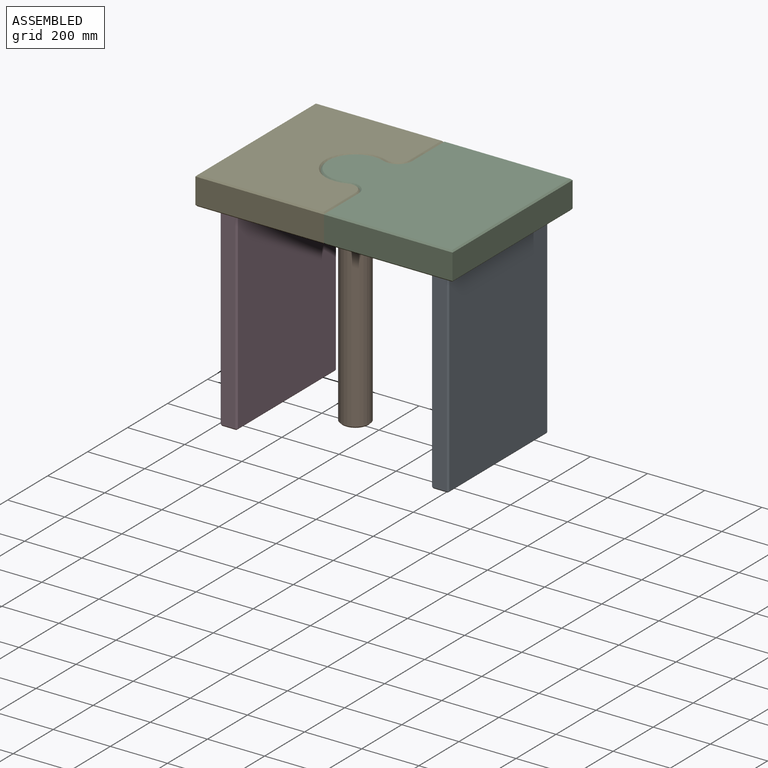
[diagram: assembled view]
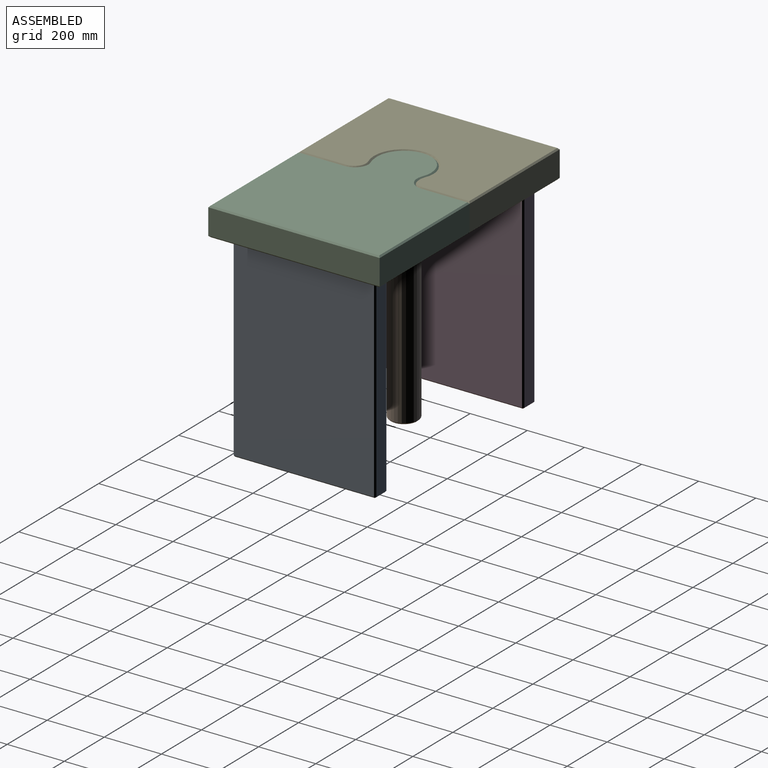
[diagram: assembled view, second angle]
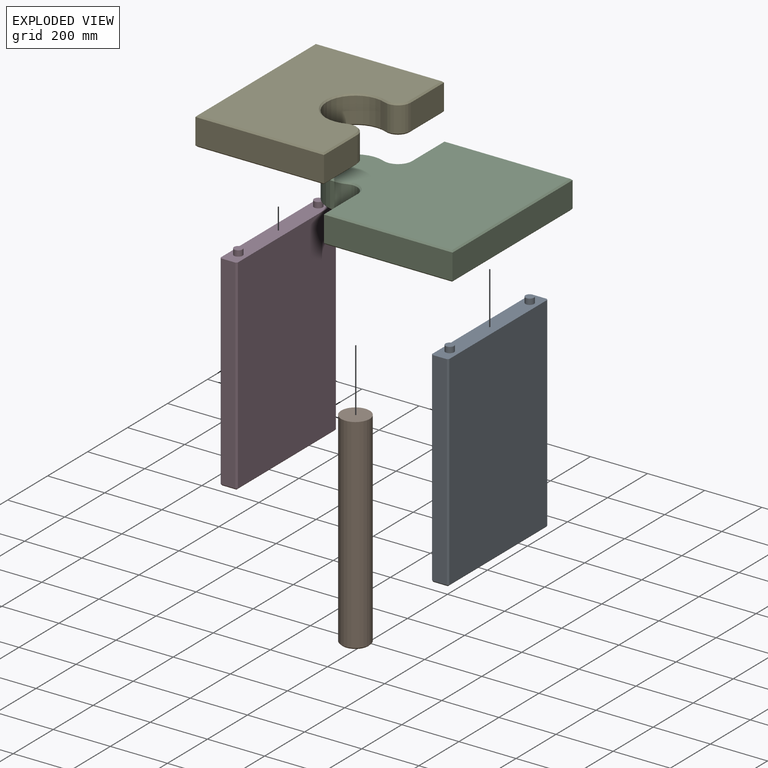
[diagram: exploded view]
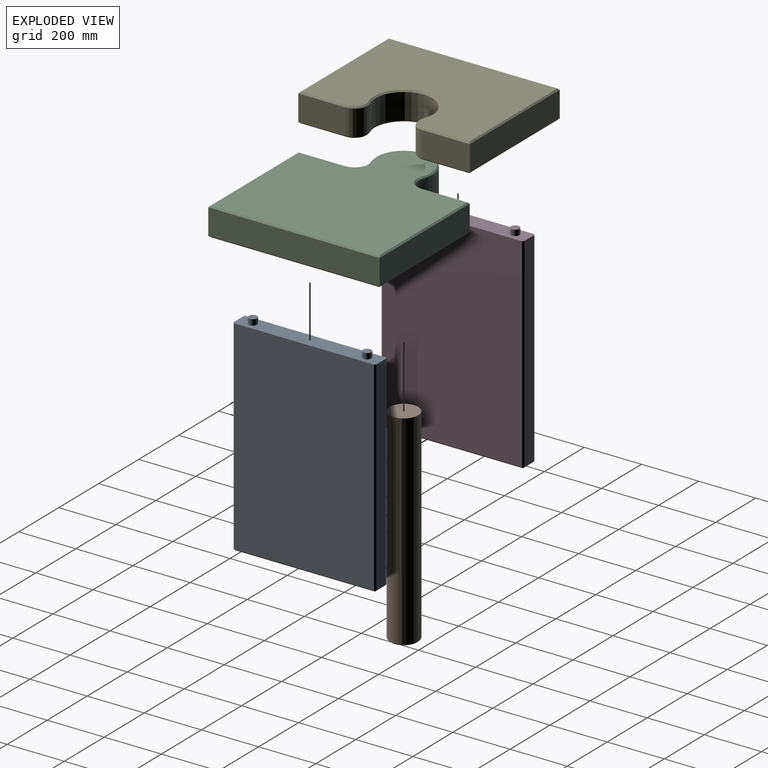
[diagram: exploded view, second angle]
ASSEMBLY  parts=5 mates=4
PART A: 22 faces, bbox 60x500x740 mm
  f0: plane 715x50mm, normal (0,1,0), area 35750mm2, adj f5,f10,f11,f12
  f1: plane 715x490mm, normal (-1,0,0), area 350350mm2, adj f5,f10,f15,f16
  f2: plane 715x50mm, normal (0,-1,0), area 35750mm2, adj f5,f16,f17,f21
  f3: plane 715x490mm, normal (1,0,0), area 350350mm2, adj f5,f11,f17,f18
  f4: plane 490x50mm, normal (0,0,-1), area 24500mm2, adj f12,f15,f18,f21
  f5: plane 500x60mm, normal (0,0,1), area 28536.3mm2, adj f0,f1,f2,f3,f6,f8,f10,f11
  f6: cylinder r=15mm len=30mm, axis (0,0,-1), area 1885mm2, adj f5,f7
  f7: plane 30x30mm, normal (0,0,1), area 706.9mm2, adj f6
  f8: cylinder r=15mm len=30mm, axis (0,0,-1), area 1885mm2, adj f5,f9
  f9: plane 30x30mm, normal (0,0,1), area 706.9mm2, adj f8
  f10: plane 715x5mm, normal (-0.71,0.71,0), area 5055.8mm2, adj f0,f1,f5,f13
  f11: plane 715x5mm, normal (0.71,0.71,0), area 5055.8mm2, adj f0,f3,f5,f14
  f12: plane 50x5mm, normal (0,0.71,-0.71), area 353.6mm2, adj f0,f4,f13,f14
  f13: plane 5x5mm, normal (-0.58,0.58,-0.58), area 21.7mm2, adj f10,f12,f15
  f14: plane 5x5mm, normal (0.58,0.58,-0.58), area 21.7mm2, adj f11,f12,f18
  f15: plane 490x5mm, normal (-0.71,0,-0.71), area 3464.8mm2, adj f1,f4,f13,f19
  f16: plane 715x5mm, normal (-0.71,-0.71,0), area 5055.8mm2, adj f1,f2,f5,f19
  f17: plane 715x5mm, normal (0.71,-0.71,0), area 5055.8mm2, adj f2,f3,f5,f20
  f18: plane 490x5mm, normal (0.71,0,-0.71), area 3464.8mm2, adj f3,f4,f14,f20
  f19: plane 5x5mm, normal (-0.58,-0.58,-0.58), area 21.7mm2, adj f15,f16,f21
  f20: plane 5x5mm, normal (0.58,-0.58,-0.58), area 21.7mm2, adj f17,f18,f21
  f21: plane 50x5mm, normal (0,-0.71,-0.71), area 353.6mm2, adj f2,f4,f19,f20
PART B: 4 faces, bbox 100x100x720 mm
  f0: cylinder r=50mm len=715mm, axis (0,0,1), area 224623.9mm2, adj f2,f3
  f1: plane 90x90mm, normal (0,0,-1), area 6361.7mm2, adj f3
  f2: plane 100x100mm, normal (0,0,1), area 7854mm2, adj f0
  f3: cone r=50mm half-angle=45deg, axis (0,0,1), area 2110.4mm2, adj f0,f1
PART C: 37 faces, bbox 650x600x100 mm
  f0: cylinder r=100mm len=200mm, axis (0,0,-1), area 35277.2mm2, adj f1,f7,f25,f33
  f1: cylinder r=45mm len=90mm, axis (0,0,-1), area 7937.4mm2, adj f0,f2,f23,f31
  f2: plane 165.84x90mm, normal (-1,0,0), area 14925.2mm2, adj f1,f3,f21,f29
  f3: plane 450x90mm, normal (0,-1,0), area 40500mm2, adj f2,f4,f22,f30
  f4: plane 600x90mm, normal (1,0,0), area 54000mm2, adj f3,f5,f24,f32
  f5: plane 450x90mm, normal (0,1,0), area 40500mm2, adj f4,f6,f26,f34
  f6: plane 165.84x90mm, normal (-1,0,0), area 14925.2mm2, adj f5,f7,f28,f36
  f7: cylinder r=45mm len=90mm, axis (0,0,-1), area 7937.4mm2, adj f0,f6,f27,f35
  f8: plane 640x590mm, normal (0,0,1), area 293183.4mm2, adj f29,f30,f31,f32,f33,f34,f35,f36
  f9: plane 640x590mm, normal (0,0,-1), area 255329.5mm2, adj f10,f11,f12,f13,f15,f21,f22,f23
  f10: plane 500x20mm, normal (1,0,0), area 10000mm2, adj f9,f11,f13,f14
  f11: plane 60x20mm, normal (0,-1,0), area 1200mm2, adj f9,f10,f12,f14
  f12: plane 500x20mm, normal (-1,0,0), area 10000mm2, adj f9,f11,f13,f14
  f13: plane 60x20mm, normal (0,1,0), area 1200mm2, adj f9,f10,f12,f14
  f14: plane 500x60mm, normal (0,0,-1), area 28586.3mm2, adj f10,f11,f12,f13,f17,f19
  f15: cylinder r=50mm len=100mm, axis (0,0,-1), area 6283.2mm2, adj f9,f16
  f16: plane 100x100mm, normal (0,0,-1), area 7854mm2, adj f15
  f17: cylinder r=15mm len=30mm, axis (0,0,-1), area 1885mm2, adj f14,f18
  f18: plane 30x30mm, normal (0,0,-1), area 706.9mm2, adj f17
  f19: cylinder r=15mm len=30mm, axis (0,0,-1), area 1885mm2, adj f14,f20
  f20: plane 30x30mm, normal (0,0,-1), area 706.9mm2, adj f19
  f21: plane 165.84x5mm, normal (-0.71,0,-0.71), area 1155mm2, adj f2,f9,f22,f23
  f22: plane 450x5mm, normal (0,-0.71,-0.71), area 3146.6mm2, adj f3,f9,f21,f24
  f23: cone r=45mm half-angle=45deg, axis (0,0,-1), area 658.3mm2, adj f1,f9,f21,f25
  f24: plane 600x5mm, normal (0.71,0,-0.71), area 4207.3mm2, adj f4,f9,f22,f26
  f25: cone r=100mm half-angle=45deg, axis (0,0,1), area 2702.4mm2, adj f0,f9,f23,f27
  f26: plane 450x5mm, normal (0,0.71,-0.71), area 3146.6mm2, adj f5,f9,f24,f28
  f27: cone r=50mm half-angle=45deg, axis (0,0,-1), area 658.3mm2, adj f7,f9,f25,f28
  f28: plane 165.84x5mm, normal (-0.71,0,-0.71), area 1155mm2, adj f6,f9,f26,f27
  f29: plane 165.84x5mm, normal (-0.71,0,0.71), area 1155mm2, adj f2,f8,f30,f31
  f30: plane 450x5mm, normal (0,-0.71,0.71), area 3146.6mm2, adj f3,f8,f29,f32
  f31: cone r=50mm half-angle=45deg, axis (0,0,1), area 658.3mm2, adj f1,f8,f29,f33
  f32: plane 600x5mm, normal (0.71,0,0.71), area 4207.3mm2, adj f4,f8,f30,f34
  f33: cone r=95mm half-angle=45deg, axis (0,0,-1), area 2702.4mm2, adj f0,f8,f31,f35
  f34: plane 450x5mm, normal (0,0.71,0.71), area 3146.6mm2, adj f5,f8,f32,f36
  f35: cone r=45mm half-angle=45deg, axis (0,0,1), area 658.3mm2, adj f7,f8,f33,f36
  f36: plane 165.84x5mm, normal (-0.71,0,0.71), area 1155mm2, adj f6,f8,f34,f35
PART D: same geometry as A
PART E: 35 faces, bbox 450x600x100 mm
  f0: plane 165.84x90mm, normal (1,0,0), area 14925.2mm2, adj f1,f7,f26,f27
  f1: cylinder r=45mm len=90mm, axis (0,0,-1), area 7937.4mm2, adj f0,f2,f24,f29
  f2: cylinder r=100mm len=200mm, axis (0,0,-1), area 35277.2mm2, adj f1,f3,f22,f31
  f3: cylinder r=45mm len=90mm, axis (0,0,-1), area 7937.4mm2, adj f2,f4,f20,f33
  f4: plane 165.84x90mm, normal (1,0,0), area 14925.2mm2, adj f3,f5,f19,f34
  f5: plane 450x90mm, normal (0,1,0), area 40500mm2, adj f4,f6,f21,f32
  f6: plane 600x90mm, normal (-1,0,0), area 54000mm2, adj f5,f7,f23,f30
  f7: plane 450x90mm, normal (0,-1,0), area 40500mm2, adj f0,f6,f25,f28
  f8: plane 590x440mm, normal (0,0,1), area 223016.3mm2, adj f27,f28,f29,f30,f31,f32,f33,f34
  f9: plane 590x440mm, normal (0,0,-1), area 193016.3mm2, adj f10,f11,f12,f13,f19,f20,f21,f22
  f10: plane 500x20mm, normal (-1,0,0), area 10000mm2, adj f9,f11,f13,f14
  f11: plane 60x20mm, normal (0,1,0), area 1200mm2, adj f9,f10,f12,f14
  f12: plane 500x20mm, normal (1,0,0), area 10000mm2, adj f9,f11,f13,f14
  f13: plane 60x20mm, normal (0,-1,0), area 1200mm2, adj f9,f10,f12,f14
  f14: plane 500x60mm, normal (0,0,-1), area 28586.3mm2, adj f10,f11,f12,f13,f15,f17
  f15: cylinder r=15mm len=30mm, axis (0,0,-1), area 1885mm2, adj f14,f16
  f16: plane 30x30mm, normal (0,0,-1), area 706.9mm2, adj f15
  f17: cylinder r=15mm len=30mm, axis (0,0,-1), area 1885mm2, adj f14,f18
  f18: plane 30x30mm, normal (0,0,-1), area 706.9mm2, adj f17
  f19: plane 165.84x5mm, normal (0.71,0,-0.71), area 1155mm2, adj f4,f9,f20,f21
  f20: cone r=45mm half-angle=45deg, axis (0,0,1), area 589mm2, adj f3,f9,f19,f22
  f21: plane 450x5mm, normal (0,0.71,-0.71), area 3146.6mm2, adj f5,f9,f19,f23
  f22: cone r=105mm half-angle=45deg, axis (0,0,-1), area 2840.9mm2, adj f2,f9,f20,f24
  f23: plane 600x5mm, normal (-0.71,0,-0.71), area 4207.3mm2, adj f6,f9,f21,f25
  f24: cone r=40mm half-angle=45deg, axis (0,0,1), area 589mm2, adj f1,f9,f22,f26
  f25: plane 450x5mm, normal (0,-0.71,-0.71), area 3146.6mm2, adj f7,f9,f23,f26
  f26: plane 165.84x5mm, normal (0.71,0,-0.71), area 1155mm2, adj f0,f9,f24,f25
  f27: plane 165.84x5mm, normal (0.71,0,0.71), area 1155mm2, adj f0,f8,f28,f29
  f28: plane 450x5mm, normal (0,-0.71,0.71), area 3146.6mm2, adj f7,f8,f27,f30
  f29: cone r=45mm half-angle=45deg, axis (0,0,-1), area 589mm2, adj f1,f8,f27,f31
  f30: plane 600x5mm, normal (-0.71,0,0.71), area 4207.3mm2, adj f6,f8,f28,f32
  f31: cone r=100mm half-angle=45deg, axis (0,0,1), area 2840.9mm2, adj f2,f8,f29,f33
  f32: plane 450x5mm, normal (0,0.71,0.71), area 3146.6mm2, adj f5,f8,f30,f34
  f33: cone r=40mm half-angle=45deg, axis (0,0,-1), area 589mm2, adj f3,f8,f31,f34
  f34: plane 165.84x5mm, normal (0.71,0,0.71), area 1155mm2, adj f4,f8,f32,f33
PLACE A t=(265.68,-54.05,75.73)mm
PLACE B t=(-204.32,-54.05,75.73)mm
PLACE C t=(120.68,-54.05,55.73)mm
PLACE D t=(-474.32,-54.05,75.73)mm
PLACE E t=(-329.32,-54.05,55.73)mm fixed
MATE slider C.f17 <-> A.f6  axis (0,0,-1) through (265.68,145.95,95.73)mm
MATE slider E.f17 <-> D.f8  axis (0,0,-1) through (-474.32,-254.05,95.73)mm
MATE slider B.f0 <-> C.f15  axis (0,0,1) through (-204.32,-54.05,75.73)mm
MATE slider C.f0 <-> E.f2  axis (0,0,-1) through (-204.32,-54.05,105.73)mm
